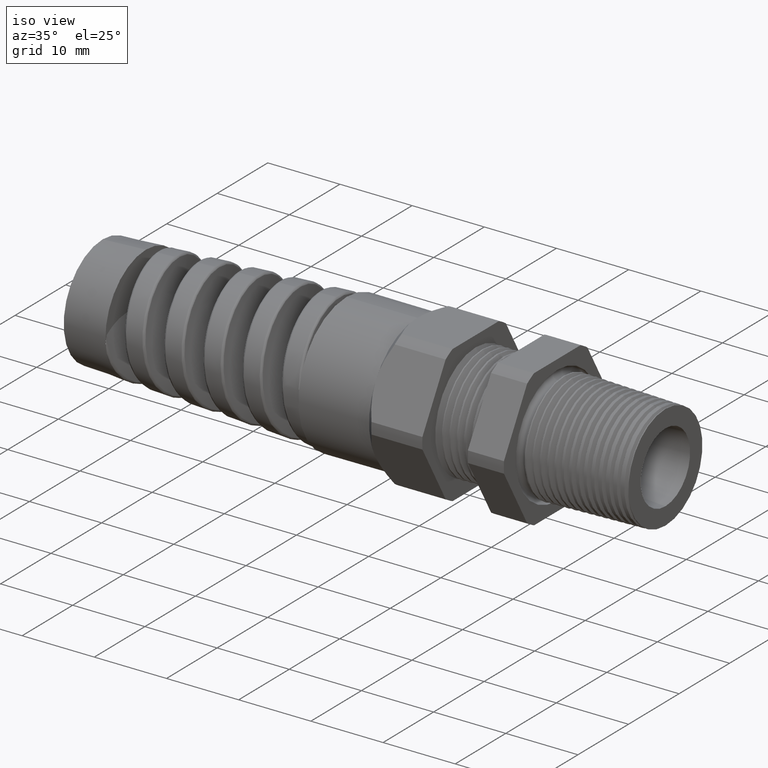
[diagram: clean part render]
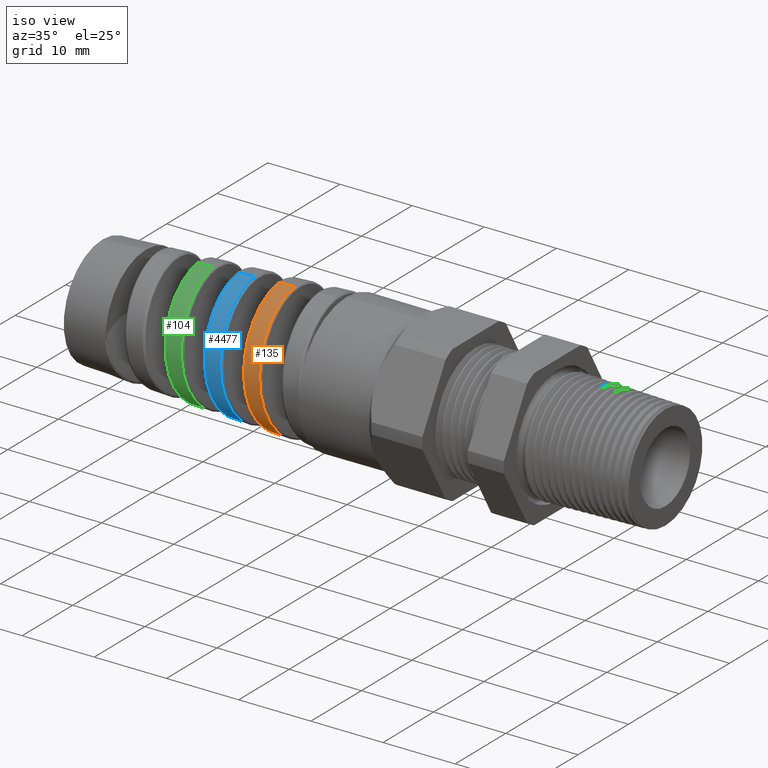
[diagram: same view with three faces highlighted in distinct colors, each labeled with its STEP entity id]
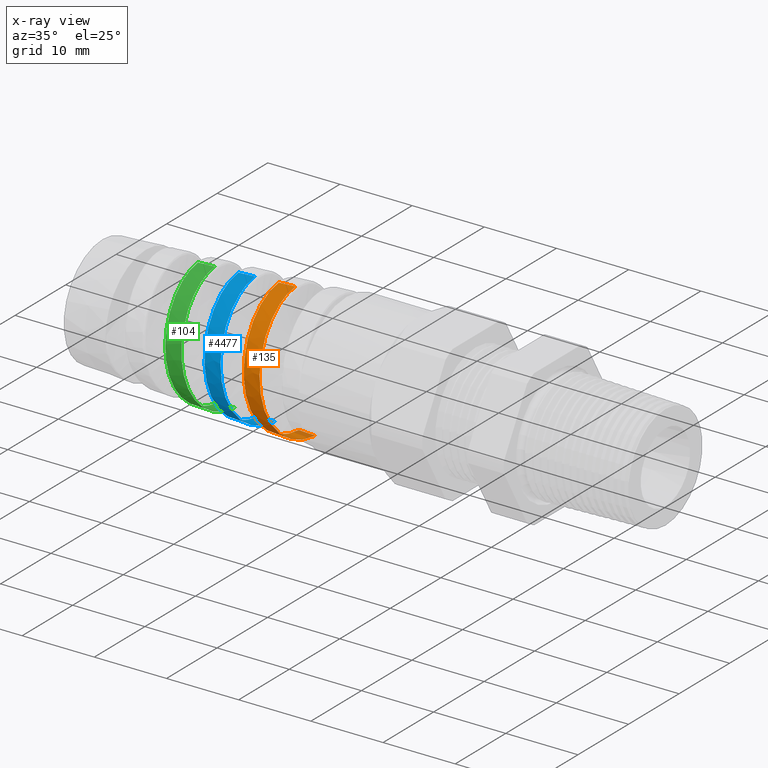
[diagram: x-ray of the same camera — body ghosted, the three highlighted faces saturated]
A machine part, iso view with three faces highlighted in distinct colors.
The next image is the same camera in x-ray (body ghosted, the three faces saturated) — at least one of them is partly hidden behind the body in this view.
Their STEP definitions:

[orange] entity #135 — the highlighted conical surface has half-angle 2.5 deg.
#126 = ORIENTED_EDGE ( 'NONE', *, *, #890, .F. ) ;
#127 = EDGE_LOOP ( 'NONE', ( #126, #4520, #4525, #4528 ) ) ;
#135 = ADVANCED_FACE ( 'NONE', ( #1222 ), #1220, .T. ) ;
#888 = VERTEX_POINT ( 'NONE', #3040 ) ;
#890 = EDGE_CURVE ( 'NONE', #888, #4574, #3072, .T. ) ;
#1220 = CONICAL_SURFACE ( 'NONE', #1279, 0.3749999999999998900, 0.04363323129985852100 ) ;
#1222 = FACE_OUTER_BOUND ( 'NONE', #127, .T. ) ;
#1277 = DIRECTION ( 'NONE',  ( 0.0000000000000000000, 0.0000000000000000000, -1.000000000000000000 ) ) ;
#1278 = DIRECTION ( 'NONE',  ( 1.000000000000000000, 0.0000000000000000000, 0.0000000000000000000 ) ) ;
#1279 = AXIS2_PLACEMENT_3D ( 'NONE', #1287, #1278, #1277 ) ;
#1287 = CARTESIAN_POINT ( 'NONE',  ( -1.179999999999999900, 0.0000000000000000000, 0.0000000000000000000 ) ) ;
#3040 = CARTESIAN_POINT ( 'NONE',  ( -1.828986991788682300, 5.857297073989955700E-013, 0.3466646160031470700 ) ) ;
#3069 = DIRECTION ( 'NONE',  ( 0.9990482215818576900, 5.341834311772757900E-018, 0.04361938736533628500 ) ) ;
#3070 = VECTOR ( 'NONE', #3069, 39.37007874015748100 ) ;
#3071 = CARTESIAN_POINT ( 'NONE',  ( -1.179999999999999900, 4.592425496802573000E-017, 0.3749999999999998900 ) ) ;
#3072 = LINE ( 'NONE', #3071, #3070 ) ;
#4095 = CARTESIAN_POINT ( 'NONE',  ( -1.629447099062387900, 6.335309537425080700E-013, -0.3553767158674405200 ) ) ;
#4520 = ORIENTED_EDGE ( 'NONE', *, *, #4544, .T. ) ;
#4525 = ORIENTED_EDGE ( 'NONE', *, *, #4538, .T. ) ;
#4527 = VERTEX_POINT ( 'NONE', #4095 ) ;
#4528 = ORIENTED_EDGE ( 'NONE', *, *, #4535, .T. ) ;
#4535 = EDGE_CURVE ( 'NONE', #4527, #4574, #11330, .T. ) ;
#4537 = VERTEX_POINT ( 'NONE', #11331 ) ;
#4538 = EDGE_CURVE ( 'NONE', #4537, #4527, #11329, .T. ) ;
#4544 = EDGE_CURVE ( 'NONE', #888, #4537, #11383, .T. ) ;
#4574 = VERTEX_POINT ( 'NONE', #11498 ) ;
#11292 = CARTESIAN_POINT ( 'NONE',  ( -1.723187889678960100, -0.1561434708018721900, 0.3148858880837172000 ) ) ;
#11293 = CARTESIAN_POINT ( 'NONE',  ( -1.720886690018191200, -0.1765470758396662800, 0.3040322924834659200 ) ) ;
#11294 = CARTESIAN_POINT ( 'NONE',  ( -1.719725348232521200, -0.1865849500230218300, 0.2980393589875220400 ) ) ;
#11295 = CARTESIAN_POINT ( 'NONE',  ( -1.716263302117674500, -0.2155643233760008700, 0.2787185846844947900 ) ) ;
#11296 = CARTESIAN_POINT ( 'NONE',  ( -1.713988919838970600, -0.2333564124167912500, 0.2641175000295993800 ) ) ;
#11297 = CARTESIAN_POINT ( 'NONE',  ( -1.709411172278367800, -0.2659538059996248700, 0.2315652477724573800 ) ) ;
#11298 = CARTESIAN_POINT ( 'NONE',  ( -1.707084198646133400, -0.2808719079998774300, 0.2133971455975660600 ) ) ;
#11299 = CARTESIAN_POINT ( 'NONE',  ( -1.702497496445803900, -0.3064957983161977200, 0.1750106106102611000 ) ) ;
#11300 = CARTESIAN_POINT ( 'NONE',  ( -1.700227727251374600, -0.3173348629430984800, 0.1547248170502916500 ) ) ;
#11301 = CARTESIAN_POINT ( 'NONE',  ( -1.696786941577846000, -0.3306086274223887800, 0.1226513915468349000 ) ) ;
#11302 = CARTESIAN_POINT ( 'NONE',  ( -1.695627872701016800, -0.3345466071498743900, 0.1116250403260740200 ) ) ;
#11303 = CARTESIAN_POINT ( 'NONE',  ( -1.693329581059097100, -0.3412534542850972400, 0.08943384737537664300 ) ) ;
#11304 = CARTESIAN_POINT ( 'NONE',  ( -1.692187283600730100, -0.3440400727073887300, 0.07824254689991645700 ) ) ;
#11305 = CARTESIAN_POINT ( 'NONE',  ( -1.688764343632673400, -0.3507383612005096600, 0.04438972173256105400 ) ) ;
#11306 = CARTESIAN_POINT ( 'NONE',  ( -1.686487726832684800, -0.3530046136687409700, 0.02145197294191885500 ) ) ;
#11307 = CARTESIAN_POINT ( 'NONE',  ( -1.681869946946644300, -0.3529596733920422600, -0.02518431056972951500 ) ) ;
#11308 = CARTESIAN_POINT ( 'NONE',  ( -1.679599819794607400, -0.3506459000529414900, -0.04814212379874115200 ) ) ;
#11309 = CARTESIAN_POINT ( 'NONE',  ( -1.676186904974482900, -0.3438867188120166000, -0.08197896287409009400 ) ) ;
#11310 = CARTESIAN_POINT ( 'NONE',  ( -1.675047702268786400, -0.3410815298238476500, -0.09316153922336632700 ) ) ;
#11311 = CARTESIAN_POINT ( 'NONE',  ( -1.672754955639363700, -0.3343437081389478100, -0.1153287800709395100 ) ) ;
#11312 = CARTESIAN_POINT ( 'NONE',  ( -1.671597099799956100, -0.3303895118589190700, -0.1263518387047005400 ) ) ;
#11313 = CARTESIAN_POINT ( 'NONE',  ( -1.668159589518425800, -0.3170668705421090800, -0.1584261230196883900 ) ) ;
#11314 = CARTESIAN_POINT ( 'NONE',  ( -1.665896802922410800, -0.3062053092976180800, -0.1787019106520828500 ) ) ;
#11315 = CARTESIAN_POINT ( 'NONE',  ( -1.661343158156245400, -0.2805748170209937400, -0.2170588688487437900 ) ) ;
#11316 = CARTESIAN_POINT ( 'NONE',  ( -1.659034383867216600, -0.2656550742895492100, -0.2352328663124042800 ) ) ;
#11317 = CARTESIAN_POINT ( 'NONE',  ( -1.654484278302384500, -0.2330660053822115300, -0.2678209903114053800 ) ) ;
#11318 = CARTESIAN_POINT ( 'NONE',  ( -1.652221317159924500, -0.2152969700547916200, -0.2824393292957173000 ) ) ;
#11319 = CARTESIAN_POINT ( 'NONE',  ( -1.648788487437823400, -0.1863944499144813400, -0.3018024201274983600 ) ) ;
#11320 = CARTESIAN_POINT ( 'NONE',  ( -1.647636232473050000, -0.1763608497304383300, -0.3078302025159359000 ) ) ;
#11321 = CARTESIAN_POINT ( 'NONE',  ( -1.645357297634782300, -0.1559705365735437900, -0.3187575046401057200 ) ) ;
#11322 = CARTESIAN_POINT ( 'NONE',  ( -1.643091563205891100, -0.1351551039840609400, -0.3286315521460186900 ) ) ;
#11323 = CARTESIAN_POINT ( 'NONE',  ( -1.640828304794291300, -0.1135067574467758500, -0.3364358119124819500 ) ) ;
#11324 = CARTESIAN_POINT ( 'NONE',  ( -1.638555036372065100, -0.09143873421647337500, -0.3431941914713002600 ) ) ;
#11325 = CARTESIAN_POINT ( 'NONE',  ( -1.637409095213789900, -0.08015198161366905700, -0.3460588435370079400 ) ) ;
#11326 = CARTESIAN_POINT ( 'NONE',  ( -1.633968986006409300, -0.04593179286807599900, -0.3529649229276384800 ) ) ;
#11327 = CARTESIAN_POINT ( 'NONE',  ( -1.631709974017610200, -0.02301432170722754800, -0.3552779166132524800 ) ) ;
#11328 = CARTESIAN_POINT ( 'NONE',  ( -1.629447099062387900, 6.335309537425080700E-013, -0.3553767158674405200 ) ) ;
#11329 = LINE ( 'NONE', #11358, #11357 ) ;
#11330 = B_SPLINE_CURVE_WITH_KNOTS ( 'NONE', 3,
 ( #11328, #11327, #11326, #11325, #11324, #11323, #11322, #11321, #11320, #11319, #11318, #11317, #11316, #11315, #11314, #11313, #11312, #11311, #11310, #11309, #11308, #11307, #11306, #11305, #11304, #11303, #11302, #11301, #11300, #11299, #11298, #11297, #11296, #11295, #11294, #11293, #11292, #11365, #11364, #11363, #11362, #11361, #11360, #11359 ),
 .UNSPECIFIED., .F., .F.,
 ( 4, 2, 2, 1, 2, 2, 2, 2, 2, 2, 2, 2, 2, 2, 2, 2, 2, 2, 2, 1, 2, 2, 4 ),
 ( 0.04223393478016669600, 0.04401936298605606300, 0.04491207708900074600, 0.04580479119194542900, 0.04669750529489011300, 0.04759021939783479600, 0.04937564760372417000, 0.05116107580961353600, 0.05294650401550291000, 0.05383921811844759300, 0.05473193222139227700, 0.05651736042728165000, 0.05830278863317102400, 0.05919550273611570700, 0.06008821683906039000, 0.06187364504494975700, 0.06365907325083912400, 0.06544450145672850400, 0.06633721555967317400, 0.06722992966261787100, 0.06812264376556255400, 0.06901535786850723800, 0.07080078607439660400 ),
 .UNSPECIFIED. ) ;
#11331 = CARTESIAN_POINT ( 'NONE',  ( -1.718821416648108600, -1.626372567711688800E-015, -0.3514745488898431400 ) ) ;
#11356 = DIRECTION ( 'NONE',  ( 0.9990482215818576900, 0.0000000000000000000, -0.04361938736533628500 ) ) ;
#11357 = VECTOR ( 'NONE', #11356, 39.37007874015748100 ) ;
#11358 = CARTESIAN_POINT ( 'NONE',  ( -1.179999999999999900, 0.0000000000000000000, -0.3749999999999998900 ) ) ;
#11359 = CARTESIAN_POINT ( 'NONE',  ( -1.739280633780339700, -5.485580412967092100E-014, 0.3505812801786799000 ) ) ;
#11360 = CARTESIAN_POINT ( 'NONE',  ( -1.736983230059644200, -0.02303002946385767100, 0.3506815869913633700 ) ) ;
#11361 = CARTESIAN_POINT ( 'NONE',  ( -1.734703084597571300, -0.04594874209932198200, 0.3485337208965050300 ) ) ;
#11362 = CARTESIAN_POINT ( 'NONE',  ( -1.731233731716431500, -0.08014805864604435100, 0.3418550827523275100 ) ) ;
#11363 = CARTESIAN_POINT ( 'NONE',  ( -1.730071817126992000, -0.09148875846019789700, 0.3390465374671464100 ) ) ;
#11364 = CARTESIAN_POINT ( 'NONE',  ( -1.727770661389735500, -0.1136133612410739900, 0.3323932742552587700 ) ) ;
#11365 = CARTESIAN_POINT ( 'NONE',  ( -1.725479649808232300, -0.1353056020285397800, 0.3246820916395845000 ) ) ;
#11366 = CARTESIAN_POINT ( 'NONE',  ( -1.789813466065305100, -0.3138289902964613900, 0.1529636963452054000 ) ) ;
#11367 = CARTESIAN_POINT ( 'NONE',  ( -1.792089030006353700, -0.3031178711718265400, 0.1730270467545576800 ) ) ;
#11368 = CARTESIAN_POINT ( 'NONE',  ( -1.795541130495278600, -0.2840728004021386100, 0.2015547328323932000 ) ) ;
#11369 = CARTESIAN_POINT ( 'NONE',  ( -1.796704752142640200, -0.2771817690276656700, 0.2108493915633183900 ) ) ;
#11370 = CARTESIAN_POINT ( 'NONE',  ( -1.799016852607083100, -0.2626172840451701500, 0.2285806120614674000 ) ) ;
#11371 = CARTESIAN_POINT ( 'NONE',  ( -1.800166135698513000, -0.2549457841749223100, 0.2370284549970503000 ) ) ;
#11372 = CARTESIAN_POINT ( 'NONE',  ( -1.803609880629128300, -0.2307929186474056100, 0.2611479070112188700 ) ) ;
#11373 = CARTESIAN_POINT ( 'NONE',  ( -1.805898938348490700, -0.2131841710302527200, 0.2756074496344814700 ) ) ;
#11374 = CARTESIAN_POINT ( 'NONE',  ( -1.810544589763098700, -0.1748439867173317000, 0.3011570008841291100 ) ) ;
#11375 = CARTESIAN_POINT ( 'NONE',  ( -1.812839002175283800, -0.1546422112449792100, 0.3118795020555226700 ) ) ;
#11376 = CARTESIAN_POINT ( 'NONE',  ( -1.816283689709232700, -0.1230922446409950900, 0.3248674348487289300 ) ) ;
#11377 = CARTESIAN_POINT ( 'NONE',  ( -1.817433794999157900, -0.1123534447327412400, 0.3286854699922945300 ) ) ;
#11378 = CARTESIAN_POINT ( 'NONE',  ( -1.819748822728019900, -0.09042335597977216300, 0.3352773188238137300 ) ) ;
#11379 = CARTESIAN_POINT ( 'NONE',  ( -1.820918976537939200, -0.07918032870013917700, 0.3380567575223618600 ) ) ;
#11380 = CARTESIAN_POINT ( 'NONE',  ( -1.824394773346871500, -0.04545488539199278600, 0.3446360464586639100 ) ) ;
#11381 = CARTESIAN_POINT ( 'NONE',  ( -1.826681931365660800, -0.02280643822822975300, 0.3467652571147157300 ) ) ;
#11382 = CARTESIAN_POINT ( 'NONE',  ( -1.828986991788682300, 5.857297073989955700E-013, 0.3466646160031470700 ) ) ;
#11383 = B_SPLINE_CURVE_WITH_KNOTS ( 'NONE', 3,
 ( #11382, #11381, #11380, #11379, #11378, #11377, #11376, #11375, #11374, #11373, #11372, #11371, #11370, #11369, #11368, #11367, #11366, #11447, #11446, #11445, #11444, #11443, #11442, #11441, #11440, #11439, #11438, #11437, #11436, #11435, #11434, #11433, #11432, #11431, #11430, #11429, #11428, #11427, #11426, #11425, #11424, #11423, #11422, #11421, #11420 ),
 .UNSPECIFIED., .F., .F.,
 ( 4, 2, 2, 2, 2, 2, 2, 2, 2, 2, 2, 2, 2, 1, 2, 2, 2, 2, 2, 2, 2, 2, 4 ),
 ( 0.1756661463136572600, 0.1774271153820398700, 0.1783075999162311900, 0.1791880844504224700, 0.1809490535188050800, 0.1827100225871876900, 0.1835905071213790000, 0.1844709916555702900, 0.1862319607239529000, 0.1871124452581442200, 0.1879929297923355100, 0.1897538988607181100, 0.1906343833949094300, 0.1915148679291007200, 0.1923953524632920400, 0.1932758369974833200, 0.1950368060658659600, 0.1967977751342485600, 0.1985587442026311700, 0.1994392287368224900, 0.2003197132710137800, 0.2020806823393964100, 0.2038416514077790200 ),
 .UNSPECIFIED. ) ;
#11420 = CARTESIAN_POINT ( 'NONE',  ( -1.718821416648108600, -1.626372567711688800E-015, -0.3514745488898431400 ) ) ;
#11421 = CARTESIAN_POINT ( 'NONE',  ( -1.721089130963472400, -0.02274515367684138200, -0.3513755383445869600 ) ) ;
#11422 = CARTESIAN_POINT ( 'NONE',  ( -1.723358301174844600, -0.04549916524730955600, -0.3490783910326604700 ) ) ;
#11423 = CARTESIAN_POINT ( 'NONE',  ( -1.727959111171055500, -0.09066180245097209300, -0.3399488920976772000 ) ) ;
#11424 = CARTESIAN_POINT ( 'NONE',  ( -1.730227479087987500, -0.1124431238595069600, -0.3332548968645439000 ) ) ;
#11425 = CARTESIAN_POINT ( 'NONE',  ( -1.733641257654876500, -0.1439524982148663900, -0.3201359859599776600 ) ) ;
#11426 = CARTESIAN_POINT ( 'NONE',  ( -1.734780391078843700, -0.1542605333664914800, -0.3152463377769919000 ) ) ;
#11427 = CARTESIAN_POINT ( 'NONE',  ( -1.737072514509347500, -0.1744757254858166900, -0.3044085869468309800 ) ) ;
#11428 = CARTESIAN_POINT ( 'NONE',  ( -1.738227582904905600, -0.1843952726039895000, -0.2984437738326040600 ) ) ;
#11429 = CARTESIAN_POINT ( 'NONE',  ( -1.741657047262626900, -0.2129005711712430000, -0.2793405766675988700 ) ) ;
#11430 = CARTESIAN_POINT ( 'NONE',  ( -1.743921182238927800, -0.2304693325356960700, -0.2648963202071360500 ) ) ;
#11431 = CARTESIAN_POINT ( 'NONE',  ( -1.748494160131863300, -0.2627472550468281100, -0.2326159494725876200 ) ) ;
#11432 = CARTESIAN_POINT ( 'NONE',  ( -1.750814905016787600, -0.2774899123309728700, -0.2146451393778230100 ) ) ;
#11433 = CARTESIAN_POINT ( 'NONE',  ( -1.755378063785526300, -0.3027986303845188200, -0.1767674268935147100 ) ) ;
#11434 = CARTESIAN_POINT ( 'NONE',  ( -1.757645667570703700, -0.3135534533477016300, -0.1567070605855990000 ) ) ;
#11435 = CARTESIAN_POINT ( 'NONE',  ( -1.761098015815927500, -0.3267606580217503100, -0.1248980053208812700 ) ) ;
#11436 = CARTESIAN_POINT ( 'NONE',  ( -1.762256298450250300, -0.3306605273796419700, -0.1140135826030008200 ) ) ;
#11437 = CARTESIAN_POINT ( 'NONE',  ( -1.764550445184303500, -0.3373053918360052700, -0.09214409009937542200 ) ) ;
#11438 = CARTESIAN_POINT ( 'NONE',  ( -1.766834967489646900, -0.3428475362058021600, -0.07005689147090542200 ) ) ;
#11439 = CARTESIAN_POINT ( 'NONE',  ( -1.769120017316902800, -0.3462161089271488200, -0.04754257704874518400 ) ) ;
#11440 = CARTESIAN_POINT ( 'NONE',  ( -1.771413709318784300, -0.3484828239752712500, -0.02481260412337921900 ) ) ;
#11441 = CARTESIAN_POINT ( 'NONE',  ( -1.772571265697186800, -0.3490642946715151200, -0.01328012076395364100 ) ) ;
#11442 = CARTESIAN_POINT ( 'NONE',  ( -1.776031407130703100, -0.3490899197415124900, 0.02119238011986822000 ) ) ;
#11443 = CARTESIAN_POINT ( 'NONE',  ( -1.778306293810554500, -0.3468588904190642000, 0.04384995812502403400 ) ) ;
#11444 = CARTESIAN_POINT ( 'NONE',  ( -1.781741150843960000, -0.3402300163724512000, 0.07735609401126576600 ) ) ;
#11445 = CARTESIAN_POINT ( 'NONE',  ( -1.782889712077172700, -0.3374694515177056900, 0.08844421660488402400 ) ) ;
#11446 = CARTESIAN_POINT ( 'NONE',  ( -1.785204732168467900, -0.3308135144091946000, 0.1104533986808451500 ) ) ;
#11447 = CARTESIAN_POINT ( 'NONE',  ( -1.786365302585457600, -0.3269293514335964200, 0.1213160697632700700 ) ) ;
#11498 = CARTESIAN_POINT ( 'NONE',  ( -1.739280633780339700, -5.485580412967092100E-014, 0.3505812801786799000 ) ) ;

[blue] entity #4477 — the highlighted conical surface has half-angle 2.5 deg.
#134 = ORIENTED_EDGE ( 'NONE', *, *, #137, .T. ) ;
#136 = ORIENTED_EDGE ( 'NONE', *, *, #4561, .T. ) ;
#137 = EDGE_CURVE ( 'NONE', #4550, #877, #1276, .T. ) ;
#876 = EDGE_CURVE ( 'NONE', #904, #877, #2943, .T. ) ;
#877 = VERTEX_POINT ( 'NONE', #2939 ) ;
#887 = VERTEX_POINT ( 'NONE', #3042 ) ;
#904 = VERTEX_POINT ( 'NONE', #3102 ) ;
#1253 = CARTESIAN_POINT ( 'NONE',  ( -1.904976550521719500, -0.3434044995155922100, 0.009246643623942460800 ) ) ;
#1254 = CARTESIAN_POINT ( 'NONE',  ( -1.901557050577271600, -0.3433644110035304900, -0.02430783221276369400 ) ) ;
#1255 = CARTESIAN_POINT ( 'NONE',  ( -1.899279766523412000, -0.3411633486458290300, -0.04667996197003366300 ) ) ;
#1256 = CARTESIAN_POINT ( 'NONE',  ( -1.894673182936211300, -0.3322744779935523600, -0.09112285259258541500 ) ) ;
#1257 = CARTESIAN_POINT ( 'NONE',  ( -1.892407776402749800, -0.3257240805435009900, -0.1125555839368039300 ) ) ;
#1258 = CARTESIAN_POINT ( 'NONE',  ( -1.888995823032707300, -0.3128616609188360500, -0.1435598732611259900 ) ) ;
#1259 = CARTESIAN_POINT ( 'NONE',  ( -1.887856370734637000, -0.3080643679184649800, -0.1537024675402279300 ) ) ;
#1260 = CARTESIAN_POINT ( 'NONE',  ( -1.885562762127855500, -0.2974263345242814100, -0.1735932165917935000 ) ) ;
#1261 = CARTESIAN_POINT ( 'NONE',  ( -1.884406630034473300, -0.2915689451729000500, -0.1833539336885283700 ) ) ;
#1262 = CARTESIAN_POINT ( 'NONE',  ( -1.880978045877682800, -0.2728050385715151700, -0.2114029686430969900 ) ) ;
#1263 = CARTESIAN_POINT ( 'NONE',  ( -1.878721416254984800, -0.2586113759239600500, -0.2286910290101862300 ) ) ;
#1264 = CARTESIAN_POINT ( 'NONE',  ( -1.874170098955475000, -0.2268871030810482000, -0.2604584885040194300 ) ) ;
#1265 = CARTESIAN_POINT ( 'NONE',  ( -1.871863018068654800, -0.2092242613054914000, -0.2749707929579044400 ) ) ;
#1266 = CARTESIAN_POINT ( 'NONE',  ( -1.867317963595243900, -0.1719965634979941900, -0.2998963025004862700 ) ) ;
#1267 = CARTESIAN_POINT ( 'NONE',  ( -1.865057790726919700, -0.1522807852849127900, -0.3104952367758003800 ) ) ;
#1268 = CARTESIAN_POINT ( 'NONE',  ( -1.861629270905230400, -0.1210208508245871100, -0.3235300061675465700 ) ) ;
#1269 = CARTESIAN_POINT ( 'NONE',  ( -1.860480158605987800, -0.1103213311146179100, -0.3273842744433642600 ) ) ;
#1270 = CARTESIAN_POINT ( 'NONE',  ( -1.858206131939953200, -0.08882318171908865100, -0.3339614894664386700 ) ) ;
#1271 = CARTESIAN_POINT ( 'NONE',  ( -1.855943565101696400, -0.06711095228068926500, -0.3394590195610907000 ) ) ;
#1272 = CARTESIAN_POINT ( 'NONE',  ( -1.853680985494623700, -0.04497956522616810400, -0.3428307843872718300 ) ) ;
#1273 = CARTESIAN_POINT ( 'NONE',  ( -1.851407779634509200, -0.02263709729005304200, -0.3451264678556111300 ) ) ;
#1274 = CARTESIAN_POINT ( 'NONE',  ( -1.850260327337900600, -0.01130547236206763300, -0.3457358021142650200 ) ) ;
#1275 = CARTESIAN_POINT ( 'NONE',  ( -1.849116173223014800, 1.837771736604585800E-013, -0.3457857569617475700 ) ) ;
#1276 = B_SPLINE_CURVE_WITH_KNOTS ( 'NONE', 3,
 ( #1275, #1274, #1273, #1272, #1271, #1270, #1269, #1268, #1267, #1266, #1265, #1264, #1263, #1262, #1261, #1260, #1259, #1258, #1257, #1256, #1255, #1254, #1253, #1326, #1325, #1324, #1323, #1322, #1321, #1320, #1319, #1318, #1317, #1316, #1315, #1314, #1313, #1312, #1311, #1310, #1309, #1308, #1307, #1306, #1305, #1304, #1303 ),
 .UNSPECIFIED., .F., .F.,
 ( 4, 2, 1, 2, 2, 2, 2, 2, 2, 2, 2, 2, 2, 2, 2, 2, 2, 2, 2, 2, 2, 2, 2, 4 ),
 ( 0.09897542573117058800, 0.09984365520294660700, 0.1007118846747226300, 0.1015801141464986500, 0.1024483436182746600, 0.1041848025618267000, 0.1059212615053787400, 0.1076577204489307800, 0.1085259499207068000, 0.1093941793924828000, 0.1111306383360348400, 0.1128670972795868800, 0.1137353267513629000, 0.1146035562231389200, 0.1163400151666909600, 0.1180764741102430000, 0.1198129330537950200, 0.1206811625255710400, 0.1215493919973470700, 0.1224176214691230800, 0.1232858509408991100, 0.1250223098844511500, 0.1258905393562271500, 0.1267587688280031900 ),
 .UNSPECIFIED. ) ;
#1303 = CARTESIAN_POINT ( 'NONE',  ( -1.958952246321451000, -4.314013225144783300E-013, 0.3409902104449015200 ) ) ;
#1304 = CARTESIAN_POINT ( 'NONE',  ( -1.957799401457467800, -0.01123461386970382200, 0.3410405447386760100 ) ) ;
#1305 = CARTESIAN_POINT ( 'NONE',  ( -1.956634687258623600, -0.02258617175483479700, 0.3405301717047236100 ) ) ;
#1306 = CARTESIAN_POINT ( 'NONE',  ( -1.954317859643138300, -0.04507613918395802400, 0.3383904416822200400 ) ) ;
#1307 = CARTESIAN_POINT ( 'NONE',  ( -1.953168803450086000, -0.05618914601578856700, 0.3367709323046499900 ) ) ;
#1308 = CARTESIAN_POINT ( 'NONE',  ( -1.949731067639675100, -0.08914127616866729400, 0.3303089960700965600 ) ) ;
#1309 = CARTESIAN_POINT ( 'NONE',  ( -1.947451668620338500, -0.1105972128865100500, 0.3238785377640092700 ) ) ;
#1310 = CARTESIAN_POINT ( 'NONE',  ( -1.943978345954259400, -0.1419812270177777900, 0.3109500802455016900 ) ) ;
#1311 = CARTESIAN_POINT ( 'NONE',  ( -1.942819957020969700, -0.1522294402089160700, 0.3061165491785552400 ) ) ;
#1312 = CARTESIAN_POINT ( 'NONE',  ( -1.940521871329214100, -0.1720373112006242100, 0.2955552176879716100 ) ) ;
#1313 = CARTESIAN_POINT ( 'NONE',  ( -1.939377440453645900, -0.1816400813982938800, 0.2898100370703937100 ) ) ;
#1314 = CARTESIAN_POINT ( 'NONE',  ( -1.937088318067850600, -0.2002491729289162500, 0.2774014906643836900 ) ) ;
#1315 = CARTESIAN_POINT ( 'NONE',  ( -1.935944008283284400, -0.2092555260938714600, 0.2707381018539663000 ) ) ;
#1316 = CARTESIAN_POINT ( 'NONE',  ( -1.933645125951134000, -0.2266604099894846700, 0.2564775167180500800 ) ) ;
#1317 = CARTESIAN_POINT ( 'NONE',  ( -1.932484109529785300, -0.2350999240970771700, 0.2488351641805767500 ) ) ;
#1318 = CARTESIAN_POINT ( 'NONE',  ( -1.929031044944974300, -0.2590168424490815700, 0.2249128762988218700 ) ) ;
#1319 = CARTESIAN_POINT ( 'NONE',  ( -1.926758218245951500, -0.2731991460990390600, 0.2076043517896107600 ) ) ;
#1320 = CARTESIAN_POINT ( 'NONE',  ( -1.922179480841374800, -0.2980999394050877200, 0.1703252901617430000 ) ) ;
#1321 = CARTESIAN_POINT ( 'NONE',  ( -1.919853198406874300, -0.3088684158621953200, 0.1501488823052703200 ) ) ;
#1322 = CARTESIAN_POINT ( 'NONE',  ( -1.915279695859021700, -0.3259869997662895900, 0.1086911357167767300 ) ) ;
#1323 = CARTESIAN_POINT ( 'NONE',  ( -1.913013031330978300, -0.3324700844091892900, 0.08727823544324886400 ) ) ;
#1324 = CARTESIAN_POINT ( 'NONE',  ( -1.909571078911516100, -0.3390376944000905200, 0.05412658948597214700 ) ) ;
#1325 = CARTESIAN_POINT ( 'NONE',  ( -1.908412271254503100, -0.3406963926669835900, 0.04285821500931458900 ) ) ;
#1326 = CARTESIAN_POINT ( 'NONE',  ( -1.906117607395585700, -0.3428727464921742500, 0.02044299810757418300 ) ) ;
#2939 = CARTESIAN_POINT ( 'NONE',  ( -1.958952246321451000, -4.314013225144783300E-013, 0.3409902104449015200 ) ) ;
#2940 = DIRECTION ( 'NONE',  ( 0.9990482215818576900, 5.341834311772757900E-018, 0.04361938736533628500 ) ) ;
#2941 = VECTOR ( 'NONE', #2940, 39.37007874015748100 ) ;
#2942 = CARTESIAN_POINT ( 'NONE',  ( -1.179999999999999900, 4.592425496802573000E-017, 0.3749999999999998900 ) ) ;
#2943 = LINE ( 'NONE', #2942, #2941 ) ;
#3042 = CARTESIAN_POINT ( 'NONE',  ( -1.939152661336428900, -9.113316735077799200E-016, -0.3418546789945448600 ) ) ;
#3102 = CARTESIAN_POINT ( 'NONE',  ( -2.049319109186336500, -4.954681830925814400E-013, 0.3370447080045364000 ) ) ;
#3918 = DIRECTION ( 'NONE',  ( 0.0000000000000000000, 0.0000000000000000000, -1.000000000000000000 ) ) ;
#3919 = DIRECTION ( 'NONE',  ( 1.000000000000000000, 0.0000000000000000000, 0.0000000000000000000 ) ) ;
#3920 = AXIS2_PLACEMENT_3D ( 'NONE', #3928, #3919, #3918 ) ;
#3922 = CONICAL_SURFACE ( 'NONE', #3920, 0.3749999999999998900, 0.04363323129985852100 ) ;
#3923 = FACE_OUTER_BOUND ( 'NONE', #4637, .T. ) ;
#3928 = CARTESIAN_POINT ( 'NONE',  ( -1.179999999999999900, 0.0000000000000000000, 0.0000000000000000000 ) ) ;
#4477 = ADVANCED_FACE ( 'NONE', ( #3923 ), #3922, .T. ) ;
#4550 = VERTEX_POINT ( 'NONE', #11415 ) ;
#4561 = EDGE_CURVE ( 'NONE', #887, #4550, #11513, .T. ) ;
#4637 = EDGE_LOOP ( 'NONE', ( #4644, #4645, #136, #134 ) ) ;
#4639 = EDGE_CURVE ( 'NONE', #904, #887, #4780, .T. ) ;
#4644 = ORIENTED_EDGE ( 'NONE', *, *, #876, .F. ) ;
#4645 = ORIENTED_EDGE ( 'NONE', *, *, #4639, .T. ) ;
#4742 = CARTESIAN_POINT ( 'NONE',  ( -1.960839249717058400, -0.1977516397837150200, -0.2779112014378175600 ) ) ;
#4743 = CARTESIAN_POINT ( 'NONE',  ( -1.961977824114398800, -0.2066424156044518200, -0.2713059084040155300 ) ) ;
#4744 = CARTESIAN_POINT ( 'NONE',  ( -1.964268767594501600, -0.2238282255456083800, -0.2571784027080781800 ) ) ;
#4745 = CARTESIAN_POINT ( 'NONE',  ( -1.965427064816097200, -0.2321617306210813400, -0.2496130857073258200 ) ) ;
#4746 = CARTESIAN_POINT ( 'NONE',  ( -1.968870554545085300, -0.2557752150345759000, -0.2259531611361031100 ) ) ;
#4747 = CARTESIAN_POINT ( 'NONE',  ( -1.971135143825457400, -0.2697909452631407900, -0.2088435681316437300 ) ) ;
#4748 = CARTESIAN_POINT ( 'NONE',  ( -1.975697162336101000, -0.2944187267797918100, -0.1720023742360533600 ) ) ;
#4749 = CARTESIAN_POINT ( 'NONE',  ( -1.978015393704704700, -0.3050800373193191500, -0.1520688750036654200 ) ) ;
#4750 = CARTESIAN_POINT ( 'NONE',  ( -1.982590155452637100, -0.3220515454350819700, -0.1111113346988211700 ) ) ;
#4751 = CARTESIAN_POINT ( 'NONE',  ( -1.984863948787889000, -0.3284929640730738800, -0.08995712415506053300 ) ) ;
#4752 = CARTESIAN_POINT ( 'NONE',  ( -1.988310322599155200, -0.3350425574370225500, -0.05720359342116100600 ) ) ;
#4753 = CARTESIAN_POINT ( 'NONE',  ( -1.989470198985981500, -0.3367031220094575100, -0.04606855091650657200 ) ) ;
#4754 = CARTESIAN_POINT ( 'NONE',  ( -1.991767069772266900, -0.3388971812272889000, -0.02391422584680829100 ) ) ;
#4755 = CARTESIAN_POINT ( 'NONE',  ( -1.992909122952983600, -0.3394445362554343600, -0.01284755347597409600 ) ) ;
#4756 = CARTESIAN_POINT ( 'NONE',  ( -1.996333956815190500, -0.3394700731930848600, 0.02031980232134966700 ) ) ;
#4757 = CARTESIAN_POINT ( 'NONE',  ( -1.998619948448482100, -0.3373391900103036000, 0.04242984468774550100 ) ) ;
#4758 = CARTESIAN_POINT ( 'NONE',  ( -2.003256846258253200, -0.3286323803002007500, 0.08637970746047976500 ) ) ;
#4759 = CARTESIAN_POINT ( 'NONE',  ( -2.005537177907738200, -0.3221925177100022900, 0.1075758138434991700 ) ) ;
#4760 = CARTESIAN_POINT ( 'NONE',  ( -2.008967874795553900, -0.3095196125280123600, 0.1382380069528866300 ) ) ;
#4761 = CARTESIAN_POINT ( 'NONE',  ( -2.010113361061467400, -0.3047894662858969800, 0.1482686790541849200 ) ) ;
#4762 = CARTESIAN_POINT ( 'NONE',  ( -2.012420375591886600, -0.2942929826707280600, 0.1679393550803029700 ) ) ;
#4763 = CARTESIAN_POINT ( 'NONE',  ( -2.013583881870402600, -0.2885102922285286400, 0.1775914685475923300 ) ) ;
#4764 = CARTESIAN_POINT ( 'NONE',  ( -2.017039598768494800, -0.2699775152916846200, 0.2053235025053278300 ) ) ;
#4765 = CARTESIAN_POINT ( 'NONE',  ( -2.019323077112758800, -0.2559483987580874500, 0.2224106721102572500 ) ) ;
#4766 = CARTESIAN_POINT ( 'NONE',  ( -2.022774967983298900, -0.2324111406238942300, 0.2459468936044665300 ) ) ;
#4767 = CARTESIAN_POINT ( 'NONE',  ( -2.023934722819193500, -0.2241091393605424400, 0.2534710472094934800 ) ) ;
#4768 = CARTESIAN_POINT ( 'NONE',  ( -2.026252397617389200, -0.2068113026889059900, 0.2676436750020350100 ) ) ;
#4769 = CARTESIAN_POINT ( 'NONE',  ( -2.027402570627404800, -0.1978766682292910600, 0.2742488463668721300 ) ) ;
#4770 = CARTESIAN_POINT ( 'NONE',  ( -2.030845858377743800, -0.1702422722062914300, 0.2926621443877290800 ) ) ;
#4771 = CARTESIAN_POINT ( 'NONE',  ( -2.033131931244213300, -0.1507198993080280900, 0.3030813371565146400 ) ) ;
#4772 = CARTESIAN_POINT ( 'NONE',  ( -2.036613967463791800, -0.1197479948484149200, 0.3158456510911798500 ) ) ;
#4773 = CARTESIAN_POINT ( 'NONE',  ( -2.037780412404036800, -0.1091651322408876100, 0.3196017207355869000 ) ) ;
#4774 = CARTESIAN_POINT ( 'NONE',  ( -2.040089292841295700, -0.08789531443535990300, 0.3259887340819855900 ) ) ;
#4775 = CARTESIAN_POINT ( 'NONE',  ( -2.042385863021181100, -0.06641090471546738600, 0.3312986612361890600 ) ) ;
#4776 = CARTESIAN_POINT ( 'NONE',  ( -2.044682399310036900, -0.04450542189895568400, 0.3344821579168690800 ) ) ;
#4777 = CARTESIAN_POINT ( 'NONE',  ( -2.046991170293819300, -0.02238737375236844000, 0.3365856073453726300 ) ) ;
#4778 = CARTESIAN_POINT ( 'NONE',  ( -2.048158192460757000, -0.01115926612779430000, 0.3370953947233975000 ) ) ;
#4779 = CARTESIAN_POINT ( 'NONE',  ( -2.049319109186336500, -4.954681830925814400E-013, 0.3370447080045364000 ) ) ;
#4780 = B_SPLINE_CURVE_WITH_KNOTS ( 'NONE', 3,
 ( #4779, #4778, #4777, #4776, #4775, #4774, #4773, #4772, #4771, #4770, #4769, #4768, #4767, #4766, #4765, #4764, #4763, #4762, #4761, #4760, #4759, #4758, #4757, #4756, #4755, #4754, #4753, #4752, #4751, #4750, #4749, #4748, #4747, #4746, #4745, #4744, #4743, #4742, #4815, #4814, #4813, #4812, #4811, #4810, #4809, #4808, #4807 ),
 .UNSPECIFIED., .F., .F.,
 ( 4, 2, 1, 2, 2, 2, 2, 2, 2, 2, 2, 2, 2, 2, 2, 2, 2, 2, 2, 2, 2, 2, 2, 4 ),
 ( 0.1204945588831622900, 0.1213504859000304900, 0.1222064129168986800, 0.1230623399337668900, 0.1239182669506350800, 0.1256301209843714900, 0.1264860480012396600, 0.1273419750181078700, 0.1290538290518442600, 0.1299097560687124700, 0.1307656830855806800, 0.1324775371193170600, 0.1341893911530534500, 0.1350453181699216600, 0.1359012451867898400, 0.1376130992205262500, 0.1393249532542626400, 0.1410368072879990300, 0.1418927343048672100, 0.1427486613217354100, 0.1444605153554718000, 0.1461723693892082200, 0.1470282964060764000, 0.1478842234229446100 ),
 .UNSPECIFIED. ) ;
#4807 = CARTESIAN_POINT ( 'NONE',  ( -1.939152661336428900, -9.113316735077799200E-016, -0.3418546789945448600 ) ) ;
#4808 = CARTESIAN_POINT ( 'NONE',  ( -1.940301938398949900, -0.01121055941925889700, -0.3418045004743320300 ) ) ;
#4809 = CARTESIAN_POINT ( 'NONE',  ( -1.941454158632743000, -0.02244083786498895400, -0.3411989009399919400 ) ) ;
#4810 = CARTESIAN_POINT ( 'NONE',  ( -1.943743479973937300, -0.04462606146583920200, -0.3389107352788138800 ) ) ;
#4811 = CARTESIAN_POINT ( 'NONE',  ( -1.944881555350305200, -0.05559079714383026400, -0.3372323553138536500 ) ) ;
#4812 = CARTESIAN_POINT ( 'NONE',  ( -1.948291367391782100, -0.08810902342123080900, -0.3306328717311090600 ) ) ;
#4813 = CARTESIAN_POINT ( 'NONE',  ( -1.950556785946947700, -0.1092903161228803800, -0.3241623042372920900 ) ) ;
#4814 = CARTESIAN_POINT ( 'NONE',  ( -1.955154307264696400, -0.1506125542781177600, -0.3069274001174625600 ) ) ;
#4815 = CARTESIAN_POINT ( 'NONE',  ( -1.957428431052209600, -0.1702038560526791300, -0.2963767255241043800 ) ) ;
#11415 = CARTESIAN_POINT ( 'NONE',  ( -1.849116173223014800, 1.837771736604585800E-013, -0.3457857569617475700 ) ) ;
#11510 = DIRECTION ( 'NONE',  ( 0.9990482215818576900, 0.0000000000000000000, -0.04361938736533628500 ) ) ;
#11511 = VECTOR ( 'NONE', #11510, 39.37007874015748100 ) ;
#11512 = CARTESIAN_POINT ( 'NONE',  ( -1.179999999999999900, 0.0000000000000000000, -0.3749999999999998900 ) ) ;
#11513 = LINE ( 'NONE', #11512, #11511 ) ;

[green] entity #104 — the highlighted conical surface has half-angle 2.5 deg.
#68 = ORIENTED_EDGE ( 'NONE', *, *, #88, .T. ) ;
#88 = EDGE_CURVE ( 'NONE', #11249, #903, #1060, .T. ) ;
#96 = ORIENTED_EDGE ( 'NONE', *, *, #892, .F. ) ;
#99 = EDGE_LOOP ( 'NONE', ( #96, #68, #4467, #4503 ) ) ;
#104 = ADVANCED_FACE ( 'NONE', ( #1084 ), #1082, .T. ) ;
#880 = VERTEX_POINT ( 'NONE', #2938 ) ;
#882 = EDGE_CURVE ( 'NONE', #903, #880, #2936, .T. ) ;
#892 = EDGE_CURVE ( 'NONE', #11249, #893, #3068, .T. ) ;
#893 = VERTEX_POINT ( 'NONE', #3064 ) ;
#903 = VERTEX_POINT ( 'NONE', #3104 ) ;
#1036 = CARTESIAN_POINT ( 'NONE',  ( -2.216684854818229900, -0.3298575578750797000, 0.01987130115053735100 ) ) ;
#1037 = CARTESIAN_POINT ( 'NONE',  ( -2.218973605474873900, -0.3277380270187245600, 0.04135899528272753100 ) ) ;
#1038 = CARTESIAN_POINT ( 'NONE',  ( -2.222403128331529800, -0.3214820255662196900, 0.07298585717378140700 ) ) ;
#1039 = CARTESIAN_POINT ( 'NONE',  ( -2.223547165543339400, -0.3188801404583830300, 0.08343714435275573200 ) ) ;
#1040 = CARTESIAN_POINT ( 'NONE',  ( -2.225849144140276800, -0.3126216973847637500, 0.1041526003303926400 ) ) ;
#1041 = CARTESIAN_POINT ( 'NONE',  ( -2.227012144443711400, -0.3089430229509928500, 0.1144591590716564500 ) ) ;
#1042 = CARTESIAN_POINT ( 'NONE',  ( -2.230468822373396600, -0.2965303548537427900, 0.1444590505176188100 ) ) ;
#1043 = CARTESIAN_POINT ( 'NONE',  ( -2.232749726112863700, -0.2863987067390478800, 0.1634159556620261900 ) ) ;
#1044 = CARTESIAN_POINT ( 'NONE',  ( -2.237348438689666300, -0.2624723453320158600, 0.1992615658953241200 ) ) ;
#1045 = CARTESIAN_POINT ( 'NONE',  ( -2.239680622036243700, -0.2485302584388902900, 0.2162453381287213800 ) ) ;
#1046 = CARTESIAN_POINT ( 'NONE',  ( -2.244272690150029600, -0.2180541008018405900, 0.2466778603793996500 ) ) ;
#1047 = CARTESIAN_POINT ( 'NONE',  ( -2.246554900309354300, -0.2014313386639980900, 0.2603140747622508200 ) ) ;
#1048 = CARTESIAN_POINT ( 'NONE',  ( -2.250027744807871600, -0.1743841786010458300, 0.2783457586155093100 ) ) ;
#1049 = CARTESIAN_POINT ( 'NONE',  ( -2.251195641958689400, -0.1649935860308949200, 0.2839528617396531700 ) ) ;
#1050 = CARTESIAN_POINT ( 'NONE',  ( -2.253507297979378900, -0.1459103109628500900, 0.2941021020653666300 ) ) ;
#1051 = CARTESIAN_POINT ( 'NONE',  ( -2.254657407257320200, -0.1361694094962954100, 0.2986795237500410900 ) ) ;
#1052 = CARTESIAN_POINT ( 'NONE',  ( -2.256955106015407600, -0.1162966640291082800, 0.3068563773669184500 ) ) ;
#1053 = CARTESIAN_POINT ( 'NONE',  ( -2.258102730388366700, -0.1061648153725113800, 0.3104557875379529400 ) ) ;
#1054 = CARTESIAN_POINT ( 'NONE',  ( -2.260408075696960700, -0.08550676161150994000, 0.3166644177187194500 ) ) ;
#1055 = CARTESIAN_POINT ( 'NONE',  ( -2.261570862821269800, -0.07493318137927036700, 0.3192824253081474900 ) ) ;
#1056 = CARTESIAN_POINT ( 'NONE',  ( -2.265057047175392600, -0.04293471037541230600, 0.3255263259723447100 ) ) ;
#1057 = CARTESIAN_POINT ( 'NONE',  ( -2.267349572006503300, -0.02150988329945805300, 0.3275252924150793300 ) ) ;
#1058 = CARTESIAN_POINT ( 'NONE',  ( -2.269655256799251400, 7.706197884670312700E-013, 0.3274246240429274400 ) ) ;
#1060 = B_SPLINE_CURVE_WITH_KNOTS ( 'NONE', 3,
 ( #1058, #1057, #1056, #1055, #1054, #1053, #1052, #1051, #1050, #1049, #1048, #1047, #1046, #1045, #1044, #1043, #1042, #1041, #1040, #1039, #1038, #1037, #1036, #1106, #1105, #1104, #1103, #1102, #1101, #1100, #1099, #1098, #1097, #1096, #1095, #1094, #1093, #1092, #1091, #1090, #1089, #1088, #1087, #1086, #1085 ),
 .UNSPECIFIED., .F., .F.,
 ( 4, 2, 2, 2, 2, 2, 2, 2, 2, 2, 2, 2, 2, 2, 2, 2, 2, 2, 2, 1, 2, 2, 4 ),
 ( 0.06686078864022901300, 0.06852483565947477300, 0.06935685916909764500, 0.07018888267872051800, 0.07102090618834339100, 0.07185292969796627800, 0.07351697671721202400, 0.07518102373645776900, 0.07684507075570351500, 0.07767709426532638800, 0.07850911777494926100, 0.08017316479419500700, 0.08183721181344075200, 0.08266923532306362500, 0.08350125883268649800, 0.08516530585193224400, 0.08682935287117800300, 0.08849339989042374900, 0.08932542340004662200, 0.09015744690966950900, 0.09098947041929238100, 0.09182149392891525400, 0.09348554094816100000 ),
 .UNSPECIFIED. ) ;
#1079 = DIRECTION ( 'NONE',  ( 0.0000000000000000000, 0.0000000000000000000, -1.000000000000000000 ) ) ;
#1080 = DIRECTION ( 'NONE',  ( 1.000000000000000000, 0.0000000000000000000, 0.0000000000000000000 ) ) ;
#1081 = AXIS2_PLACEMENT_3D ( 'NONE', #1083, #1080, #1079 ) ;
#1082 = CONICAL_SURFACE ( 'NONE', #1081, 0.3749999999999998900, 0.04363323129985852100 ) ;
#1083 = CARTESIAN_POINT ( 'NONE',  ( -1.179999999999999900, 0.0000000000000000000, 0.0000000000000000000 ) ) ;
#1084 = FACE_OUTER_BOUND ( 'NONE', #99, .T. ) ;
#1085 = CARTESIAN_POINT ( 'NONE',  ( -2.159486677192966400, -6.190649241902019200E-014, -0.3322346881074293400 ) ) ;
#1086 = CARTESIAN_POINT ( 'NONE',  ( -2.161758185019163800, -0.02151105015650202000, -0.3321355119339096100 ) ) ;
#1087 = CARTESIAN_POINT ( 'NONE',  ( -2.164023104291532600, -0.04291753007132403900, -0.3299672110687326100 ) ) ;
#1088 = CARTESIAN_POINT ( 'NONE',  ( -2.167465555205398500, -0.07485971389521603500, -0.3235159089531999300 ) ) ;
#1089 = CARTESIAN_POINT ( 'NONE',  ( -2.168615546613128900, -0.08542768286848954900, -0.3208328767820312600 ) ) ;
#1090 = CARTESIAN_POINT ( 'NONE',  ( -2.170894545700542200, -0.1060603706746664800, -0.3145104035719053500 ) ) ;
#1091 = CARTESIAN_POINT ( 'NONE',  ( -2.173163666118128800, -0.1262934254294318900, -0.3072119917686554900 ) ) ;
#1092 = CARTESIAN_POINT ( 'NONE',  ( -2.175436304532456500, -0.1457345687326740400, -0.2979861204545749000 ) ) ;
#1093 = CARTESIAN_POINT ( 'NONE',  ( -2.177721811647240500, -0.1647723297263854200, -0.2877815406377447500 ) ) ;
#1094 = CARTESIAN_POINT ( 'NONE',  ( -2.178877412230768100, -0.1741389241583808400, -0.2821548007699564200 ) ) ;
#1095 = CARTESIAN_POINT ( 'NONE',  ( -2.182324299583688900, -0.2011718776730506700, -0.2640431418527938700 ) ) ;
#1096 = CARTESIAN_POINT ( 'NONE',  ( -2.184591850975859700, -0.2177781302554932200, -0.2503770621246646000 ) ) ;
#1097 = CARTESIAN_POINT ( 'NONE',  ( -2.189148604885988300, -0.2482161615642515800, -0.2199386334852048700 ) ) ;
#1098 = CARTESIAN_POINT ( 'NONE',  ( -2.191462971982812900, -0.2621547347662137000, -0.2029634600077967800 ) ) ;
#1099 = CARTESIAN_POINT ( 'NONE',  ( -2.196036231682297200, -0.2861199088718586200, -0.1671005377800848800 ) ) ;
#1100 = CARTESIAN_POINT ( 'NONE',  ( -2.198307744066541500, -0.2962661904987685100, -0.1481557404858936400 ) ) ;
#1101 = CARTESIAN_POINT ( 'NONE',  ( -2.201751120174133500, -0.3087067066922700700, -0.1182122284537268600 ) ) ;
#1102 = CARTESIAN_POINT ( 'NONE',  ( -2.202910612646730400, -0.3124018181921564600, -0.1079175797289022400 ) ) ;
#1103 = CARTESIAN_POINT ( 'NONE',  ( -2.205210188892868100, -0.3187063422873279700, -0.08718396851785680000 ) ) ;
#1104 = CARTESIAN_POINT ( 'NONE',  ( -2.206352519017718000, -0.3213296339385827100, -0.07672846790529810900 ) ) ;
#1105 = CARTESIAN_POINT ( 'NONE',  ( -2.209775374002922500, -0.3276486558417135400, -0.04510384499918569000 ) ) ;
#1106 = CARTESIAN_POINT ( 'NONE',  ( -2.212051777348005300, -0.3298084604192683100, -0.02367908331675341900 ) ) ;
#2936 = LINE ( 'NONE', #2965, #2964 ) ;
#2938 = CARTESIAN_POINT ( 'NONE',  ( -2.068787640064678100, 9.703833087165205500E-013, -0.3361946935893445600 ) ) ;
#2963 = DIRECTION ( 'NONE',  ( 0.9990482215818576900, 0.0000000000000000000, -0.04361938736533628500 ) ) ;
#2964 = VECTOR ( 'NONE', #2963, 39.37007874015748100 ) ;
#2965 = CARTESIAN_POINT ( 'NONE',  ( -1.179999999999999900, 0.0000000000000000000, -0.3749999999999998900 ) ) ;
#3064 = CARTESIAN_POINT ( 'NONE',  ( -2.178621865879716500, -6.435187334179715600E-015, 0.3313992277266334900 ) ) ;
#3065 = DIRECTION ( 'NONE',  ( 0.9990482215818576900, 5.341834311772757900E-018, 0.04361938736533628500 ) ) ;
#3066 = VECTOR ( 'NONE', #3065, 39.37007874015748100 ) ;
#3067 = CARTESIAN_POINT ( 'NONE',  ( -1.179999999999999900, 4.592425496802573000E-017, 0.3749999999999998900 ) ) ;
#3068 = LINE ( 'NONE', #3067, #3066 ) ;
#3104 = CARTESIAN_POINT ( 'NONE',  ( -2.159486677192966400, -6.190649241902019200E-014, -0.3322346881074293400 ) ) ;
#3871 = CARTESIAN_POINT ( 'NONE',  ( -2.153314363619922100, -0.2206680314181700700, 0.2496802761079482100 ) ) ;
#3872 = CARTESIAN_POINT ( 'NONE',  ( -2.148730249836482600, -0.2515312146476301700, 0.2188602470335053200 ) ) ;
#3873 = CARTESIAN_POINT ( 'NONE',  ( -2.146407924733008800, -0.2656385575751141800, 0.2016698796558753200 ) ) ;
#3874 = CARTESIAN_POINT ( 'NONE',  ( -2.141833053352830300, -0.2898358616497792600, 0.1654168920858258000 ) ) ;
#3875 = CARTESIAN_POINT ( 'NONE',  ( -2.139559138851342200, -0.3000949448308239400, 0.1462284849558326800 ) ) ;
#3876 = CARTESIAN_POINT ( 'NONE',  ( -2.136104212774104100, -0.3126706701623340200, 0.1158299756681233500 ) ) ;
#3877 = CARTESIAN_POINT ( 'NONE',  ( -2.134943225512874900, -0.3163899307625011600, 0.1054045567895785400 ) ) ;
#3878 = CARTESIAN_POINT ( 'NONE',  ( -2.132648491768576600, -0.3227157108411434200, 0.08446346527146204900 ) ) ;
#3879 = CARTESIAN_POINT ( 'NONE',  ( -2.131508426113751100, -0.3253476491853571900, 0.07389329215010759200 ) ) ;
#3880 = CARTESIAN_POINT ( 'NONE',  ( -2.129230318205805000, -0.3295682903314433000, 0.05255851374006048600 ) ) ;
#3881 = CARTESIAN_POINT ( 'NONE',  ( -2.128092360600186700, -0.3311569742089378000, 0.04179389586242916000 ) ) ;
#3882 = CARTESIAN_POINT ( 'NONE',  ( -2.125806738865998900, -0.3332798871578968000, 0.02006939557902949800 ) ) ;
#3883 = CARTESIAN_POINT ( 'NONE',  ( -2.124654361712061200, -0.3338137146303403200, 0.009064363593445626600 ) ) ;
#3884 = CARTESIAN_POINT ( 'NONE',  ( -2.121197357060928800, -0.3337731482831930400, -0.02393937723800659100 ) ) ;
#3885 = CARTESIAN_POINT ( 'NONE',  ( -2.118925118559408000, -0.3315920869041024100, -0.04560934532308043300 ) ) ;
#3886 = CARTESIAN_POINT ( 'NONE',  ( -2.115506712511138000, -0.3251955808759321400, -0.07762581067975883600 ) ) ;
#3887 = CARTESIAN_POINT ( 'NONE',  ( -2.114366192358787100, -0.3225388033506491100, -0.08821602655930067800 ) ) ;
#3888 = CARTESIAN_POINT ( 'NONE',  ( -2.112070655977577700, -0.3161484165228987100, -0.1092269531908155500 ) ) ;
#3889 = CARTESIAN_POINT ( 'NONE',  ( -2.110917274214499300, -0.3124124060085702900, -0.1196300054458477200 ) ) ;
#3890 = CARTESIAN_POINT ( 'NONE',  ( -2.107492736712766900, -0.2998339217278100400, -0.1499022249755846100 ) ) ;
#3891 = CARTESIAN_POINT ( 'NONE',  ( -2.105231403813514900, -0.2895690419655885800, -0.1690754382051825300 ) ) ;
#3892 = CARTESIAN_POINT ( 'NONE',  ( -2.101806080582748300, -0.2713621131680028500, -0.1963199687824689600 ) ) ;
#3893 = CARTESIAN_POINT ( 'NONE',  ( -2.100652854151490600, -0.2647841858222959000, -0.2051910856695240700 ) ) ;
#3894 = CARTESIAN_POINT ( 'NONE',  ( -2.098356765070218600, -0.2508391473853392500, -0.2221731455057819000 ) ) ;
#3895 = CARTESIAN_POINT ( 'NONE',  ( -2.097217823817778500, -0.2434990319776212700, -0.2302617908286562500 ) ) ;
#3896 = CARTESIAN_POINT ( 'NONE',  ( -2.093811425456612700, -0.2204078527942798500, -0.2533530472699989100 ) ) ;
#3897 = CARTESIAN_POINT ( 'NONE',  ( -2.091553763405673600, -0.2035960297813669800, -0.2671919466388113500 ) ) ;
#3898 = CARTESIAN_POINT ( 'NONE',  ( -2.088116244337223600, -0.1761959492590242600, -0.2855450592875418100 ) ) ;
#3899 = CARTESIAN_POINT ( 'NONE',  ( -2.086967208244288100, -0.1667360073865665500, -0.2912252291879578500 ) ) ;
#3900 = CARTESIAN_POINT ( 'NONE',  ( -2.084689862425794800, -0.1474875525740828300, -0.3015413081920322300 ) ) ;
#3901 = CARTESIAN_POINT ( 'NONE',  ( -2.083556001908337700, -0.1376550073011353900, -0.3062075446135403300 ) ) ;
#3902 = CARTESIAN_POINT ( 'NONE',  ( -2.081288387476307300, -0.1175795519900007500, -0.3145686939262200000 ) ) ;
#3903 = CARTESIAN_POINT ( 'NONE',  ( -2.080154822462234200, -0.1073366230914542500, -0.3182636130011511400 ) ) ;
#3904 = CARTESIAN_POINT ( 'NONE',  ( -2.077878986819796200, -0.08643496993060698100, -0.3246669020587796300 ) ) ;
#3905 = CARTESIAN_POINT ( 'NONE',  ( -2.076730000424165600, -0.07571592097067891800, -0.3273857352476087200 ) ) ;
#3906 = CARTESIAN_POINT ( 'NONE',  ( -2.073305328018920000, -0.04343562206093583300, -0.3339005898747950400 ) ) ;
#3907 = CARTESIAN_POINT ( 'NONE',  ( -2.071053471832011300, -0.02178104877567348100, -0.3360957652379732400 ) ) ;
#3908 = CARTESIAN_POINT ( 'NONE',  ( -2.068787640064678100, 9.703833087165205500E-013, -0.3361946935893445600 ) ) ;
#3909 = B_SPLINE_CURVE_WITH_KNOTS ( 'NONE', 3,
 ( #3908, #3907, #3906, #3905, #3904, #3903, #3902, #3901, #3900, #3899, #3898, #3897, #3896, #3895, #3894, #3893, #3892, #3891, #3890, #3889, #3888, #3887, #3886, #3885, #3884, #3883, #3882, #3881, #3880, #3879, #3878, #3877, #3876, #3875, #3874, #3873, #3872, #3871, #3944, #3943, #3942, #3941, #3940, #3939, #3938, #3937, #3936, #3935 ),
 .UNSPECIFIED., .F., .F.,
 ( 4, 2, 2, 2, 2, 2, 2, 2, 2, 2, 2, 2, 2, 2, 2, 2, 2, 2, 2, 2, 2, 2, 2, 4 ),
 ( 0.1541551796259835200, 0.1558436678318604100, 0.1566879119347988300, 0.1575321560377372900, 0.1583764001406757200, 0.1592206442436141500, 0.1609091324494910400, 0.1617533765524295000, 0.1625976206553679200, 0.1642861088612448100, 0.1651303529641832700, 0.1659745970671217000, 0.1676630852729985900, 0.1685073293759370100, 0.1693515734788754700, 0.1701958175818139000, 0.1710400616847523600, 0.1727285498906292500, 0.1744170380965061300, 0.1761055263023830200, 0.1769497704053214500, 0.1777940145082599100, 0.1794825027141367700, 0.1811709909200136500 ),
 .UNSPECIFIED. ) ;
#3935 = CARTESIAN_POINT ( 'NONE',  ( -2.178621865879716500, -6.435187334179715600E-015, 0.3313992277266334900 ) ) ;
#3936 = CARTESIAN_POINT ( 'NONE',  ( -2.176326761380550600, -0.02176040122209041100, 0.3314994341531403200 ) ) ;
#3937 = CARTESIAN_POINT ( 'NONE',  ( -2.174038289615167300, -0.04345459741077054700, 0.3294770359067075200 ) ) ;
#3938 = CARTESIAN_POINT ( 'NONE',  ( -2.169390402336380600, -0.08669677119678845200, 0.3210322630834571100 ) ) ;
#3939 = CARTESIAN_POINT ( 'NONE',  ( -2.167099224591007900, -0.1076331366668202800, 0.3147179009294611700 ) ) ;
#3940 = CARTESIAN_POINT ( 'NONE',  ( -2.163666392225156900, -0.1378051842977162700, 0.3023022800817130600 ) ) ;
#3941 = CARTESIAN_POINT ( 'NONE',  ( -2.162521248579774500, -0.1476694746478853200, 0.2976667292217687300 ) ) ;
#3942 = CARTESIAN_POINT ( 'NONE',  ( -2.160217187109438000, -0.1670030586836363800, 0.2873822563022673800 ) ) ;
#3943 = CARTESIAN_POINT ( 'NONE',  ( -2.159053126902495700, -0.1765107627376664400, 0.2817026280226525600 ) ) ;
#3944 = CARTESIAN_POINT ( 'NONE',  ( -2.155594563969385600, -0.2038480686064964900, 0.2634741208827778800 ) ) ;
#4467 = ORIENTED_EDGE ( 'NONE', *, *, #882, .T. ) ;
#4472 = EDGE_CURVE ( 'NONE', #880, #893, #3909, .T. ) ;
#4503 = ORIENTED_EDGE ( 'NONE', *, *, #4472, .T. ) ;
#10222 = CARTESIAN_POINT ( 'NONE',  ( -2.269655256799251400, 7.706197884670312700E-013, 0.3274246240429274400 ) ) ;
#11249 = VERTEX_POINT ( 'NONE', #10222 ) ;